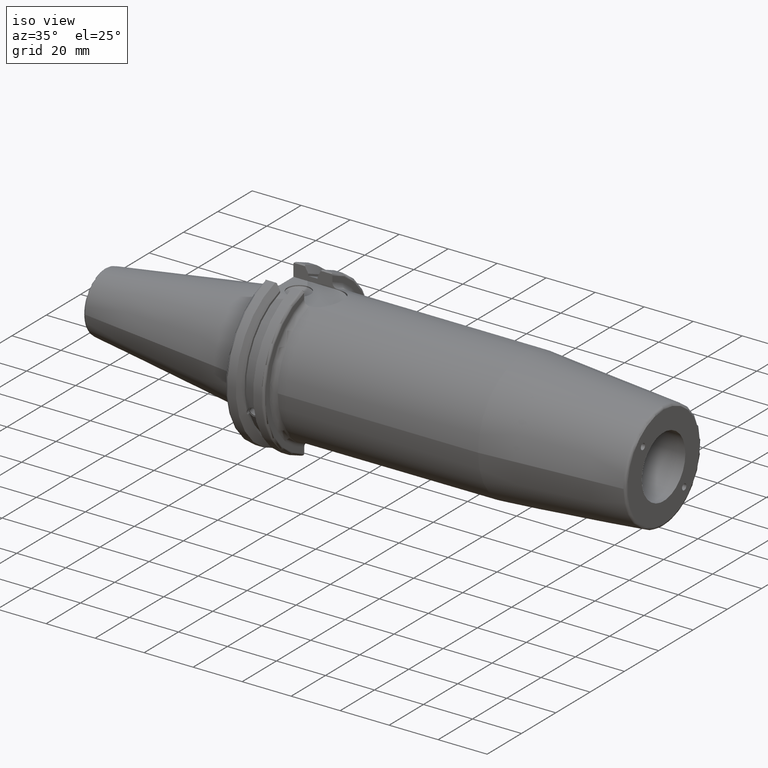
[diagram: clean part render]
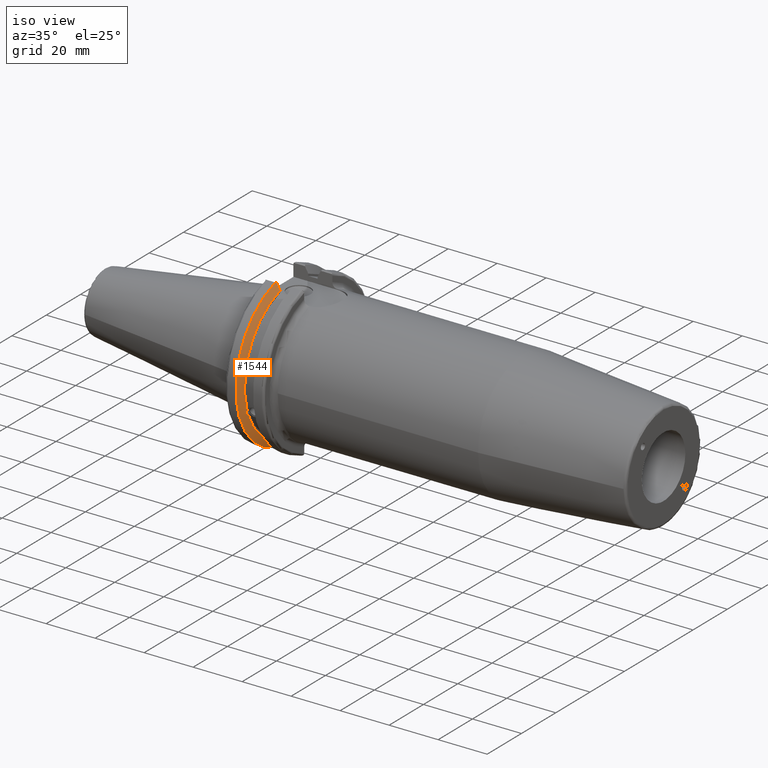
[diagram: same view with one face highlighted and labeled with its STEP entity id]
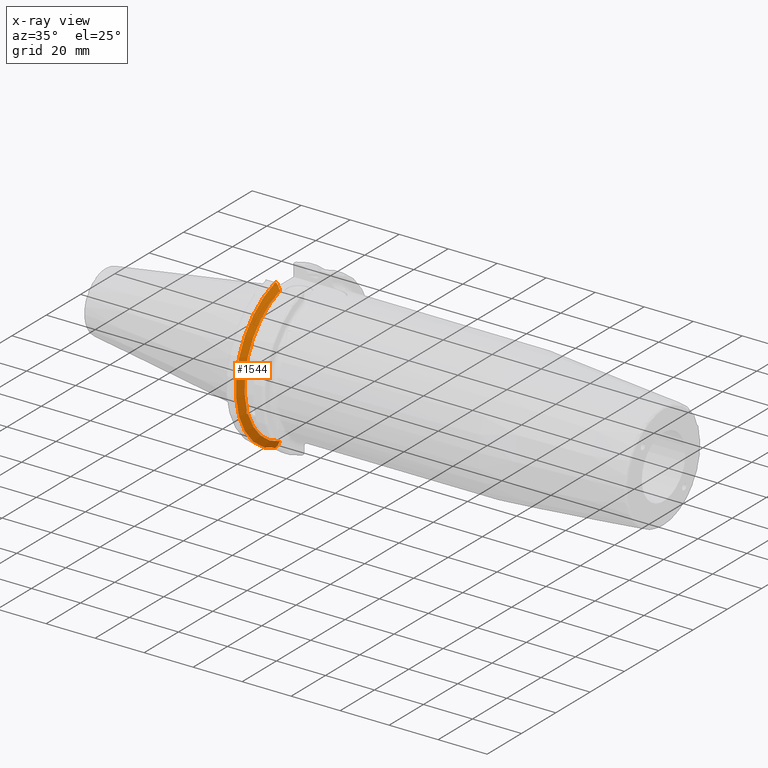
[diagram: x-ray of the same camera — body ghosted, the highlighted face saturated]
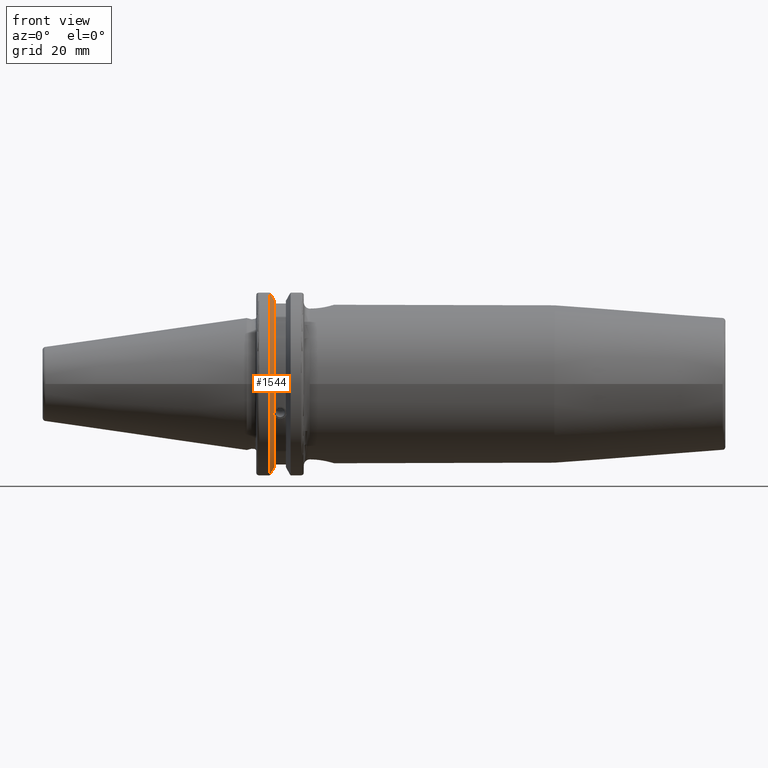
[diagram: same view with one face highlighted and labeled with its STEP entity id]
A machine part, iso view. The second image highlights one B-rep face of the part: STEP entity #1544.
The next image is the same camera in x-ray: the body ghosted, the highlighted face saturated — about 0% of this face is hidden behind the body in this view.
A second angle (front view) of the same face is appended — the face is thin or edge-on in the first view.
In plain terms, the highlighted conical surface has half-angle 60 deg.
Its self-contained STEP definition (entity closure, byte-faithful):
#49=(
BOUNDED_CURVE()
B_SPLINE_CURVE(2,(#2541,#2542,#2543),.UNSPECIFIED.,.F.,.F.)
B_SPLINE_CURVE_WITH_KNOTS((3,3),(0.000648058824076786,0.277522778575507),
 .UNSPECIFIED.)
CURVE()
GEOMETRIC_REPRESENTATION_ITEM()
RATIONAL_B_SPLINE_CURVE((1.00000446254054,1.00095588068141,1.0003153141612))
REPRESENTATION_ITEM('')
);
#54=(
BOUNDED_CURVE()
B_SPLINE_CURVE(2,(#2671,#2672,#2673),.UNSPECIFIED.,.F.,.F.)
B_SPLINE_CURVE_WITH_KNOTS((3,3),(0.,0.0635040351203251),.UNSPECIFIED.)
CURVE()
GEOMETRIC_REPRESENTATION_ITEM()
RATIONAL_B_SPLINE_CURVE((1.,1.00028265805066,1.00047402789719))
REPRESENTATION_ITEM('')
);
#55=(
BOUNDED_CURVE()
B_SPLINE_CURVE(2,(#2677,#2678,#2679),.UNSPECIFIED.,.F.,.F.)
B_SPLINE_CURVE_WITH_KNOTS((3,3),(0.329353533631205,0.393258405001025),
 .UNSPECIFIED.)
CURVE()
GEOMETRIC_REPRESENTATION_ITEM()
RATIONAL_B_SPLINE_CURVE((1.00047644010572,1.00028444218283,1.))
REPRESENTATION_ITEM('')
);
#56=(
BOUNDED_CURVE()
B_SPLINE_CURVE(2,(#2681,#2682,#2683),.UNSPECIFIED.,.F.,.F.)
B_SPLINE_CURVE_WITH_KNOTS((3,3),(0.0550586467392022,0.33160778953585),
 .UNSPECIFIED.)
CURVE()
GEOMETRIC_REPRESENTATION_ITEM()
RATIONAL_B_SPLINE_CURVE((1.00031614445148,1.00095203904325,1.))
REPRESENTATION_ITEM('')
);
#80=B_SPLINE_CURVE_WITH_KNOTS('',3,(#2686,#2687,#2688,#2689,#2690,#2691,
#2692,#2693,#2694,#2695,#2696,#2697,#2698,#2699),.UNSPECIFIED.,.F.,.F.,
(4,2,2,2,2,2,4),(0.451995700189024,0.464547828547663,0.504528771685167,
0.544509714822672,0.584490657960178,0.624471601097683,0.63702372945632),
 .UNSPECIFIED.);
#205=FACE_OUTER_BOUND('',#294,.T.);
#294=EDGE_LOOP('',(#1150,#1151,#1152,#1153,#1154,#1155,#1156,#1157));
#572=CIRCLE('',#1677,28.9593772964944);
#573=CIRCLE('',#1679,31.75);
#574=CIRCLE('',#1680,28.9593772964944);
#678=VERTEX_POINT('',#2538);
#679=VERTEX_POINT('',#2540);
#700=VERTEX_POINT('',#2666);
#701=VERTEX_POINT('',#2670);
#702=VERTEX_POINT('',#2674);
#703=VERTEX_POINT('',#2676);
#704=VERTEX_POINT('',#2680);
#705=VERTEX_POINT('',#2684);
#849=EDGE_CURVE('',#679,#678,#49,.T.);
#876=EDGE_CURVE('',#679,#700,#572,.T.);
#878=EDGE_CURVE('',#701,#678,#54,.T.);
#879=EDGE_CURVE('',#701,#702,#573,.T.);
#880=EDGE_CURVE('',#703,#702,#55,.T.);
#881=EDGE_CURVE('',#703,#704,#56,.T.);
#882=EDGE_CURVE('',#705,#704,#574,.T.);
#883=EDGE_CURVE('',#705,#700,#80,.T.);
#1150=ORIENTED_EDGE('',*,*,#849,.T.);
#1151=ORIENTED_EDGE('',*,*,#878,.F.);
#1152=ORIENTED_EDGE('',*,*,#879,.T.);
#1153=ORIENTED_EDGE('',*,*,#880,.F.);
#1154=ORIENTED_EDGE('',*,*,#881,.T.);
#1155=ORIENTED_EDGE('',*,*,#882,.F.);
#1156=ORIENTED_EDGE('',*,*,#883,.T.);
#1157=ORIENTED_EDGE('',*,*,#876,.F.);
#1514=CONICAL_SURFACE('',#1678,30.3546886482472,1.0471975511966);
#1544=ADVANCED_FACE('',(#205),#1514,.T.);
#1677=AXIS2_PLACEMENT_3D('',#2667,#1936,#1937);
#1678=AXIS2_PLACEMENT_3D('',#2669,#1939,#1940);
#1679=AXIS2_PLACEMENT_3D('',#2675,#1941,#1942);
#1680=AXIS2_PLACEMENT_3D('',#2685,#1943,#1944);
#1936=DIRECTION('center_axis',(1.,0.,0.));
#1937=DIRECTION('ref_axis',(0.,0.,-1.));
#1939=DIRECTION('center_axis',(-1.,0.,0.));
#1940=DIRECTION('ref_axis',(0.,-0.999999999325735,-3.67223388143052E-5));
#1941=DIRECTION('center_axis',(1.,0.,0.));
#1942=DIRECTION('ref_axis',(0.,0.,-1.));
#1943=DIRECTION('center_axis',(1.,0.,0.));
#1944=DIRECTION('ref_axis',(0.,0.,-1.));
#2538=CARTESIAN_POINT('',(7.88495816302903,-8.193,30.1777870228437));
#2540=CARTESIAN_POINT('',(9.2191,-8.193,27.7762539663057));
#2541=CARTESIAN_POINT('Ctrl Pts',(9.2191,-8.193,27.7762539663057));
#2542=CARTESIAN_POINT('Ctrl Pts',(8.57967155189169,-8.193,28.9309512021624));
#2543=CARTESIAN_POINT('Ctrl Pts',(7.88495816302903,-8.193,30.1777870228437));
#2666=CARTESIAN_POINT('',(9.2191,-27.4956274489925,-9.09043478536245));
#2667=CARTESIAN_POINT('Origin',(9.2191,0.,0.));
#2669=CARTESIAN_POINT('Origin',(8.41351661546218,0.,0.));
#2670=CARTESIAN_POINT('',(7.60793323092436,-8.67204822802685,30.5427254764662));
#2671=CARTESIAN_POINT('Ctrl Pts',(7.60793323092436,-8.67204822802686,30.5427254764662));
#2672=CARTESIAN_POINT('Ctrl Pts',(7.74810695893866,-8.43070043207779,30.3588669706084));
#2673=CARTESIAN_POINT('Ctrl Pts',(7.88495816302903,-8.193,30.1777870228437));
#2674=CARTESIAN_POINT('',(7.60793323092436,-8.67204822802685,-30.5427254764662));
#2675=CARTESIAN_POINT('Origin',(7.60793323092436,0.,0.));
#2676=CARTESIAN_POINT('',(7.88668530351256,-8.19,-30.1755016258903));
#2677=CARTESIAN_POINT('Ctrl Pts',(7.88668530351256,-8.19,-30.1755016258903));
#2678=CARTESIAN_POINT('Ctrl Pts',(7.74899148121159,-8.42917748263467,-30.3577067892692));
#2679=CARTESIAN_POINT('Ctrl Pts',(7.60793323092435,-8.67204822802687,-30.5427254764662));
#2680=CARTESIAN_POINT('',(9.2191,-8.19,-27.7771386827498));
#2681=CARTESIAN_POINT('Ctrl Pts',(7.88668530351256,-8.19,-30.1755016258903));
#2682=CARTESIAN_POINT('Ctrl Pts',(8.5804635615235,-8.19,-28.9303689539712));
#2683=CARTESIAN_POINT('Ctrl Pts',(9.2191,-8.19,-27.7771386827498));
#2684=CARTESIAN_POINT('',(9.2191,-26.9060914640648,-10.7101715919071));
#2685=CARTESIAN_POINT('Origin',(9.2191,0.,0.));
#2686=CARTESIAN_POINT('Ctrl Pts',(9.2191,-26.9060914640648,-10.7101715919071));
#2687=CARTESIAN_POINT('Ctrl Pts',(9.20497959280038,-26.9406927482839,-10.6893765730703));
#2688=CARTESIAN_POINT('Ctrl Pts',(9.19150701821433,-26.9744191989197,-10.6676007180673));
#2689=CARTESIAN_POINT('Ctrl Pts',(9.13811855884095,-27.1113422433189,-10.5723885976054));
#2690=CARTESIAN_POINT('Ctrl Pts',(9.09998029158246,-27.2180531796526,-10.4801333026531));
#2691=CARTESIAN_POINT('Ctrl Pts',(9.04778935539424,-27.3968610665578,-10.2639559818059));
#2692=CARTESIAN_POINT('Ctrl Pts',(9.0341,-27.4684373304961,-10.139516340139));
#2693=CARTESIAN_POINT('Ctrl Pts',(9.0341,-27.559599249844,-9.8890510252165));
#2694=CARTESIAN_POINT('Ctrl Pts',(9.04778935539424,-27.5847569104122,-9.74771639360671));
#2695=CARTESIAN_POINT('Ctrl Pts',(9.09998029158246,-27.5867382255984,-9.46717946402648));
#2696=CARTESIAN_POINT('Ctrl Pts',(9.13811855884095,-27.5642934663232,-9.32791534028655));
#2697=CARTESIAN_POINT('Ctrl Pts',(9.19150701821434,-27.5206055003512,-9.16696618806877));
#2698=CARTESIAN_POINT('Ctrl Pts',(9.20497959280038,-27.5087667900418,-9.12860597076217));
#2699=CARTESIAN_POINT('Ctrl Pts',(9.2191,-27.4956274489925,-9.09043478536245));